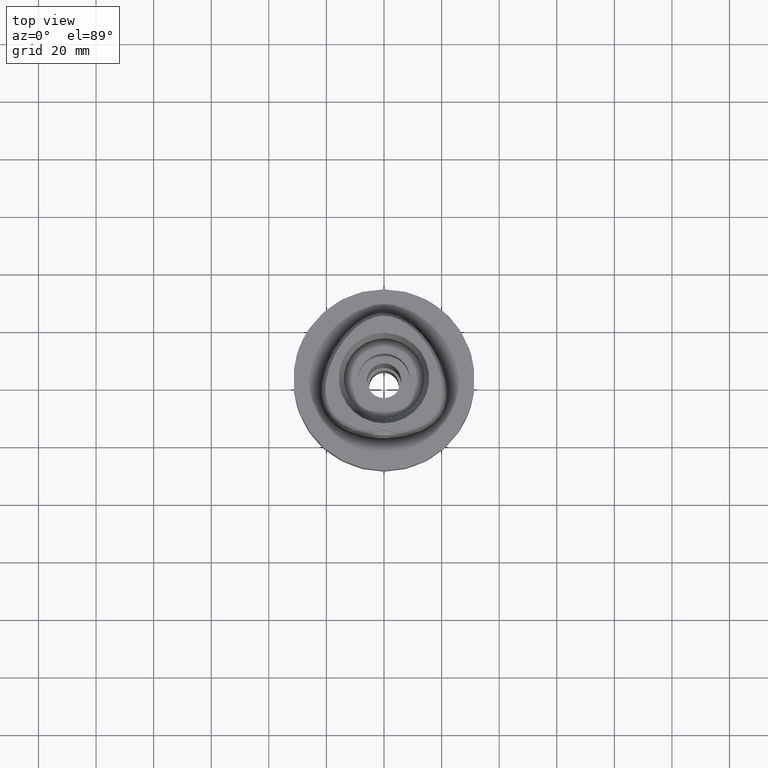
[diagram: clean part render]
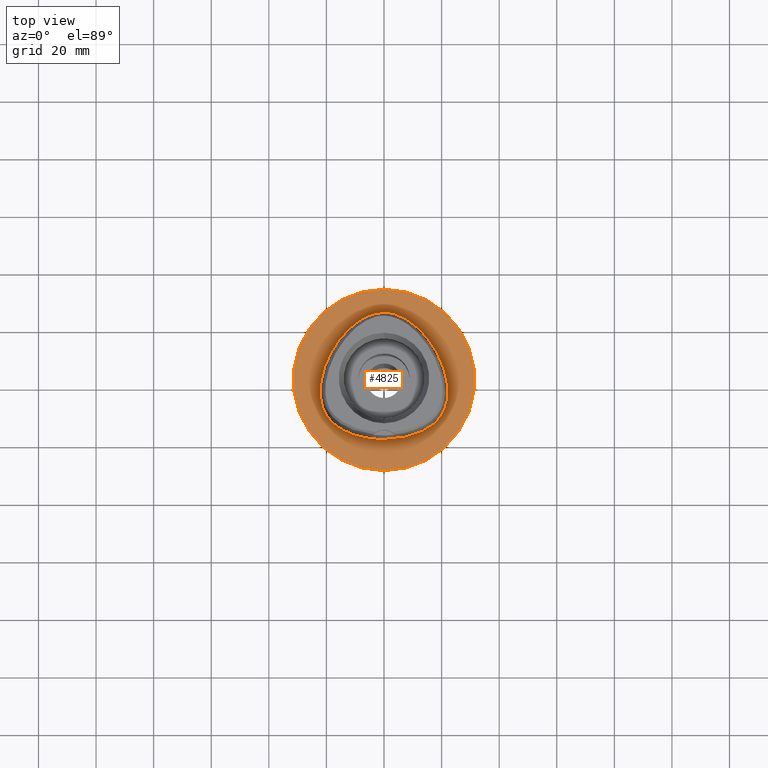
[diagram: same view with one face highlighted and labeled with its STEP entity id]
A machine part, top view. The second image highlights one B-rep face of the part: STEP entity #4825.
In plain terms, the highlighted planar face has unit normal (0, 0, -1).
Its self-contained STEP definition (entity closure, byte-faithful):
#73 = CARTESIAN_POINT ( 'NONE',  ( -2.113823673075034382, -20.67499999999897753, 4.213480692821791607E-13 ) ) ;
#77 = CARTESIAN_POINT ( 'NONE',  ( 19.64947363486497522, -12.82525388897782292, 1.173326477833412304E-06 ) ) ;
#152 = CARTESIAN_POINT ( 'NONE',  ( 18.56841063005047232, -14.16937986256427529, 1.173326477833412304E-06 ) ) ;
#153 = EDGE_CURVE ( 'NONE', #1996, #880, #2479, .T. ) ;
#182 = AXIS2_PLACEMENT_3D ( 'NONE', #1650, #2127, #4328 ) ;
#194 = EDGE_CURVE ( 'NONE', #4895, #4680, #2415, .T. ) ;
#290 = EDGE_LOOP ( 'NONE', ( #3313, #1292 ) ) ;
#332 = CARTESIAN_POINT ( 'NONE',  ( -0.8548392423002876273, 23.47500000000669118, 4.213480692821792112E-13 ) ) ;
#451 = CARTESIAN_POINT ( 'NONE',  ( -4.460147746690000880E-12, -20.67499999999999716, 5.388282412847000214E-14 ) ) ;
#503 = CARTESIAN_POINT ( 'NONE',  ( 20.34961796012295565, -11.74885740718131899, 1.173326477833412304E-06 ) ) ;
#546 = CARTESIAN_POINT ( 'NONE',  ( -4.460147746690000880E-12, -20.67499999999999716, 5.388282412847000214E-14 ) ) ;
#688 = CARTESIAN_POINT ( 'NONE',  ( -4.460147746690000880E-12, -20.67499999999999716, 5.388282412847000214E-14 ) ) ;
#748 = CARTESIAN_POINT ( 'NONE',  ( -20.74942740880076997, 4.657187500000266489, 4.213480692821791607E-13 ) ) ;
#880 = VERTEX_POINT ( 'NONE', #1819 ) ;
#924 = CARTESIAN_POINT ( 'NONE',  ( 6.341471014000215511, -20.29812497096515145, 1.173326477833412304E-06 ) ) ;
#1153 = CARTESIAN_POINT ( 'NONE',  ( -14.40795638958287483, 15.64093749999229743, 4.213480692821791607E-13 ) ) ;
#1225 = CARTESIAN_POINT ( 'NONE',  ( -16.95889172593633987, -15.67838867187115781, 4.213480692821791607E-13 ) ) ;
#1229 = CARTESIAN_POINT ( 'NONE',  ( 0.8548392402302584792, 23.47499997067164301, 1.173326477833412304E-06 ) ) ;
#1292 = ORIENTED_EDGE ( 'NONE', *, *, #4039, .F. ) ;
#1301 = CARTESIAN_POINT ( 'NONE',  ( 21.55524823188153505, -8.996025382238531876, 1.173326477833412304E-06 ) ) ;
#1459 = CARTESIAN_POINT ( 'NONE',  ( 0.0000000000000000000, 1.224646799146999965E-14, 0.0000000000000000000 ) ) ;
#1468 = CARTESIAN_POINT ( 'NONE',  ( 0.0000000000000000000, 31.50000000000000000, 0.0000000000000000000 ) ) ;
#1490 = CARTESIAN_POINT ( 'NONE',  ( -10.74572891058941515, 19.17433593750250154, 4.213480692821791607E-13 ) ) ;
#1583 = CARTESIAN_POINT ( 'NONE',  ( -6.341471019217051364, -20.29812500000726416, 4.213480692821791607E-13 ) ) ;
#1588 = CARTESIAN_POINT ( 'NONE',  ( 22.05732871406672757, -6.847636714559238058, 1.173326477833412304E-06 ) ) ;
#1611 = CARTESIAN_POINT ( 'NONE',  ( 20.93173249527524504, -10.60431639429990014, 1.173326477833412304E-06 ) ) ;
#1627 = CARTESIAN_POINT ( 'NONE',  ( -22.05732874322423243, -6.847636718749749996, 4.213480692821791607E-13 ) ) ;
#1626 = B_SPLINE_CURVE_WITH_KNOTS ( 'NONE', 3,
 ( #546, #2414, #924, #1982, #2032, #2459, #152, #77, #503, #1611, #1301, #1588, #1655, #3574, #1688, #4255, #3112, #3182, #3133, #3939, #4619, #1229, #2738 ),
 .UNSPECIFIED., .F., .F.,
 ( 4, 1, 1, 1, 1, 1, 1, 1, 1, 1, 1, 1, 1, 1, 1, 1, 1, 1, 1, 1, 4 ),
 ( 0.0000000000000000000, 0.08333333333336000182, 0.1666666666667000196, 0.2083333333333000081, 0.2500000000000000000, 0.2916666666666000163, 0.3124999999998999689, 0.3333333333332000326, 0.3541666666666000163, 0.3749999999998999689, 0.4166666666666000163, 0.4583333333332000326, 0.4999999999998999689, 0.5833333333331000015, 0.6666666666664999852, 0.7499999999998000488, 0.8333333333329999704, 0.8749999999997000177, 0.9166666666664000651, 0.9583333333329999704, 1.000000000000000000 ),
 .UNSPECIFIED. ) ;
#1650 = CARTESIAN_POINT ( 'NONE',  ( 0.0000000000000000000, 1.340988245065999776E-14, 0.0000000000000000000 ) ) ;
#1655 = CARTESIAN_POINT ( 'NONE',  ( 22.24453904912877533, -4.100468750171970989, 1.173326477833412304E-06 ) ) ;
#1670 = EDGE_CURVE ( 'NONE', #4680, #4895, #1626, .T. ) ;
#1688 = CARTESIAN_POINT ( 'NONE',  ( 20.74942738104896378, 4.657187489998239727, 1.173326477833412304E-06 ) ) ;
#1746 = DIRECTION ( 'NONE',  ( 0.0000000000000000000, 0.0000000000000000000, -1.000000000000000000 ) ) ;
#1794 = FACE_BOUND ( 'NONE', #2019, .T. ) ;
#1819 = CARTESIAN_POINT ( 'NONE',  ( 0.0000000000000000000, -31.50000000000000000, 0.0000000000000000000 ) ) ;
#1930 = CARTESIAN_POINT ( 'NONE',  ( 3.368724666440000030E-11, 23.47499999999000053, 5.095923683028998991E-14 ) ) ;
#1977 = CARTESIAN_POINT ( 'NONE',  ( -19.64947365863768525, -12.82525390625154316, 4.213480692821791607E-13 ) ) ;
#1982 = CARTESIAN_POINT ( 'NONE',  ( 11.23259755719920072, -18.89324215977545407, 1.173326477833412304E-06 ) ) ;
#1996 = VERTEX_POINT ( 'NONE', #1468 ) ;
#2019 = EDGE_LOOP ( 'NONE', ( #2630, #2649 ) ) ;
#2032 = CARTESIAN_POINT ( 'NONE',  ( 14.67337962962921694, -17.21410153692774614, 1.173326477833412304E-06 ) ) ;
#2127 = DIRECTION ( 'NONE',  ( 0.0000000000000000000, 0.0000000000000000000, -1.000000000000000000 ) ) ;
#2279 = CARTESIAN_POINT ( 'NONE',  ( 0.0000000000000000000, 1.340988245065999776E-14, 0.0000000000000000000 ) ) ;
#2414 = CARTESIAN_POINT ( 'NONE',  ( 2.113823671326209741, -20.67499997066336448, 1.173326477833412304E-06 ) ) ;
#2415 = B_SPLINE_CURVE_WITH_KNOTS ( 'NONE', 3,
 ( #1930, #332, #4867, #4488, #4167, #1490, #1153, #2637, #748, #3006, #4145, #1627, #4252, #3887, #3150, #1977, #3472, #1225, #3130, #4281, #1583, #73, #451 ),
 .UNSPECIFIED., .F., .F.,
 ( 4, 1, 1, 1, 1, 1, 1, 1, 1, 1, 1, 1, 1, 1, 1, 1, 1, 1, 1, 1, 4 ),
 ( 0.0000000000000000000, 0.04166666666717999679, 0.08333333333381000296, 0.1250000000004000134, 0.1666666666671000052, 0.2500000000002999823, 0.3333333333335999904, 0.4166666666668999985, 0.5000000000001999512, 0.5416666666667999674, 0.5833333333333999837, 0.6250000000001000311, 0.6458333333333000637, 0.6666666666667000474, 0.6875000000000000000, 0.7083333333333000637, 0.7500000000000000000, 0.7916666666666000163, 0.8333333333332000326, 0.9166666666664999852, 1.000000000000000000 ),
 .UNSPECIFIED. ) ;
#2459 = CARTESIAN_POINT ( 'NONE',  ( 16.95889170772453980, -15.67838864871417748, 1.173326477833412304E-06 ) ) ;
#2479 = CIRCLE ( 'NONE', #4539, 31.50000000000000000 ) ;
#2630 = ORIENTED_EDGE ( 'NONE', *, *, #194, .F. ) ;
#2637 = CARTESIAN_POINT ( 'NONE',  ( -18.06826688526864189, 10.43171875000382975, 4.213480692821791607E-13 ) ) ;
#2649 = ORIENTED_EDGE ( 'NONE', *, *, #1670, .F. ) ;
#2738 = CARTESIAN_POINT ( 'NONE',  ( 3.368724666440000030E-11, 23.47499999999000053, 5.095923683028998991E-14 ) ) ;
#2921 = FACE_OUTER_BOUND ( 'NONE', #290, .T. ) ;
#3006 = CARTESIAN_POINT ( 'NONE',  ( -21.97832647787016924, -0.2810937500000479927, 4.213480692821791607E-13 ) ) ;
#3112 = CARTESIAN_POINT ( 'NONE',  ( 14.40795636704024218, 15.64093748097349845, 1.173326477833412304E-06 ) ) ;
#3130 = CARTESIAN_POINT ( 'NONE',  ( -14.67337964419538920, -17.21410156250345125, 4.213480692821791607E-13 ) ) ;
#3133 = CARTESIAN_POINT ( 'NONE',  ( 7.571159419489927878, 21.31457028710574519, 1.173326477833412304E-06 ) ) ;
#3150 = CARTESIAN_POINT ( 'NONE',  ( -20.34961798557327128, -11.74885742186827464, 4.213480692821791607E-13 ) ) ;
#3182 = CARTESIAN_POINT ( 'NONE',  ( 10.74572889162697997, 19.17433591491113987, 1.173326477833412304E-06 ) ) ;
#3266 = CIRCLE ( 'NONE', #182, 31.50000000000000000 ) ;
#3313 = ORIENTED_EDGE ( 'NONE', *, *, #153, .F. ) ;
#3364 = DIRECTION ( 'NONE',  ( 0.0000000000000000000, 1.000000000000000000, 0.0000000000000000000 ) ) ;
#3472 = CARTESIAN_POINT ( 'NONE',  ( -18.56841065142558378, -14.16937988281075178, 4.213480692821791607E-13 ) ) ;
#3574 = CARTESIAN_POINT ( 'NONE',  ( 21.97832644882664255, -0.2810937551318212213, 1.173326477833412304E-06 ) ) ;
#3634 = CARTESIAN_POINT ( 'NONE',  ( 3.368724666440000030E-11, 23.47499999999000053, 5.095923683028998991E-14 ) ) ;
#3887 = CARTESIAN_POINT ( 'NONE',  ( -20.93173252211690283, -10.60431640625382954, 4.213480692821791607E-13 ) ) ;
#3939 = CARTESIAN_POINT ( 'NONE',  ( 5.098437006334854082, 22.52602536327704286, 1.173326477833412304E-06 ) ) ;
#4039 = EDGE_CURVE ( 'NONE', #880, #1996, #3266, .T. ) ;
#4062 = PLANE ( 'NONE',  #4370 ) ;
#4145 = CARTESIAN_POINT ( 'NONE',  ( -22.24453907854730872, -4.100468750000135110, 4.213480692821791607E-13 ) ) ;
#4167 = CARTESIAN_POINT ( 'NONE',  ( -7.571159434350688500, 21.31457031250152312, 4.213480692821791607E-13 ) ) ;
#4252 = CARTESIAN_POINT ( 'NONE',  ( -21.55524826009247974, -8.996025390625590035, 4.213480692821791607E-13 ) ) ;
#4255 = CARTESIAN_POINT ( 'NONE',  ( 18.06826685973821611, 10.43171873526085669, 1.173326477833412304E-06 ) ) ;
#4281 = CARTESIAN_POINT ( 'NONE',  ( -11.23259756727036773, -18.89324218750478579, 4.213480692821791607E-13 ) ) ;
#4328 = DIRECTION ( 'NONE',  ( 0.0000000000000000000, -1.000000000000000000, 0.0000000000000000000 ) ) ;
#4370 = AXIS2_PLACEMENT_3D ( 'NONE', #1459, #1746, #4804 ) ;
#4488 = CARTESIAN_POINT ( 'NONE',  ( -5.098437017283071526, 22.52602539062921494, 4.213480692821791607E-13 ) ) ;
#4539 = AXIS2_PLACEMENT_3D ( 'NONE', #2279, #4541, #3364 ) ;
#4541 = DIRECTION ( 'NONE',  ( 0.0000000000000000000, 0.0000000000000000000, -1.000000000000000000 ) ) ;
#4619 = CARTESIAN_POINT ( 'NONE',  ( 2.564517720926932309, 23.29328122111533261, 1.173326477833412304E-06 ) ) ;
#4680 = VERTEX_POINT ( 'NONE', #688 ) ;
#4804 = DIRECTION ( 'NONE',  ( 0.0000000000000000000, -1.000000000000000000, 0.0000000000000000000 ) ) ;
#4825 = ADVANCED_FACE ( 'NONE', ( #2921, #1794 ), #4062, .F. ) ;
#4867 = CARTESIAN_POINT ( 'NONE',  ( -2.564517726953578158, 23.29328125000091987, 4.213480692821792112E-13 ) ) ;
#4895 = VERTEX_POINT ( 'NONE', #3634 ) ;